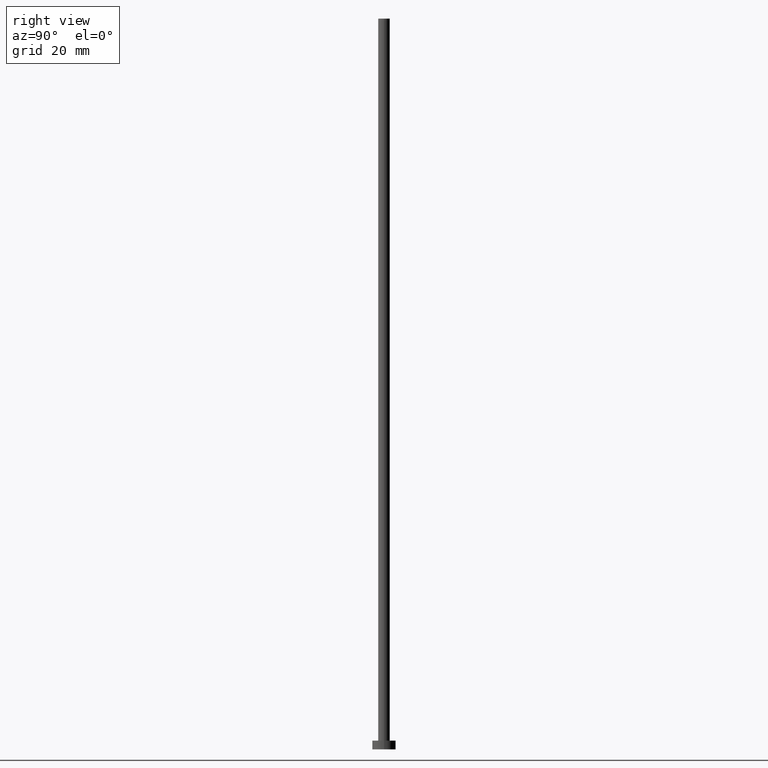
[diagram: clean part render]
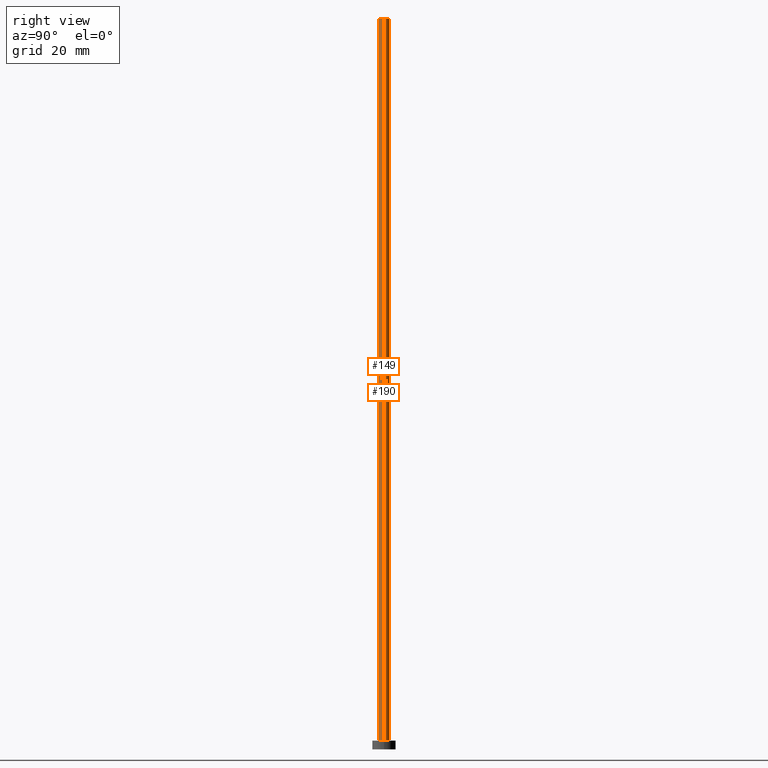
[diagram: same view with one multi-face feature highlighted, each face labeled with its STEP entity id]
A machine part, right view. The highlighted faces form ONE feature: a constant-radius fillet chain: 2 tangent blend faces with common blend radius 2 mm. The faces share edges in the B-rep.
Their STEP definitions:
[1] entity #190 (Cylinder):
#1 = DIRECTION ( 'NONE',  ( 0.000000000000000000, 0.000000000000000000, 1.000000000000000000 ) ) ;
#4 = CYLINDRICAL_SURFACE ( 'NONE', #167, 2.000000000000000000 ) ;
#6 = VECTOR ( 'NONE', #45, 1000.000000000000000 ) ;
#18 = CARTESIAN_POINT ( 'NONE',  ( 2.000000000000000000, 2.449293598294706414E-16, 250.0000000000000000 ) ) ;
#21 = VECTOR ( 'NONE', #84, 1000.000000000000000 ) ;
#22 = CARTESIAN_POINT ( 'NONE',  ( -2.000000000000000000, 0.000000000000000000, 250.0000000000000000 ) ) ;
#34 = AXIS2_PLACEMENT_3D ( 'NONE', #54, #1, #182 ) ;
#36 = DIRECTION ( 'NONE',  ( -0.000000000000000000, -0.000000000000000000, -1.000000000000000000 ) ) ;
#37 = DIRECTION ( 'NONE',  ( -1.000000000000000000, 0.000000000000000000, 0.000000000000000000 ) ) ;
#39 = ORIENTED_EDGE ( 'NONE', *, *, #106, .F. ) ;
#44 = ORIENTED_EDGE ( 'NONE', *, *, #225, .F. ) ;
#45 = DIRECTION ( 'NONE',  ( -0.000000000000000000, -0.000000000000000000, -1.000000000000000000 ) ) ;
#48 = CIRCLE ( 'NONE', #206, 2.000000000000000000 ) ;
#54 = CARTESIAN_POINT ( 'NONE',  ( 0.000000000000000000, 0.000000000000000000, 3.000000000000000000 ) ) ;
#73 = EDGE_CURVE ( 'NONE', #159, #227, #214, .T. ) ;
#84 = DIRECTION ( 'NONE',  ( -0.000000000000000000, -0.000000000000000000, -1.000000000000000000 ) ) ;
#106 = EDGE_CURVE ( 'NONE', #236, #234, #153, .T. ) ;
#111 = CARTESIAN_POINT ( 'NONE',  ( -2.000000000000000000, 0.000000000000000000, 250.0000000000000000 ) ) ;
#116 = FACE_OUTER_BOUND ( 'NONE', #185, .T. ) ;
#137 = ORIENTED_EDGE ( 'NONE', *, *, #73, .T. ) ;
#152 = CIRCLE ( 'NONE', #34, 2.000000000000000000 ) ;
#153 = LINE ( 'NONE', #111, #6 ) ;
#155 = CARTESIAN_POINT ( 'NONE',  ( 0.000000000000000000, 0.000000000000000000, 250.0000000000000000 ) ) ;
#158 = CARTESIAN_POINT ( 'NONE',  ( 2.000000000000000000, 2.449293598294706414E-16, 250.0000000000000000 ) ) ;
#159 = VERTEX_POINT ( 'NONE', #158 ) ;
#162 = CARTESIAN_POINT ( 'NONE',  ( 0.000000000000000000, 0.000000000000000000, 250.0000000000000000 ) ) ;
#167 = AXIS2_PLACEMENT_3D ( 'NONE', #162, #36, #37 ) ;
#177 = CARTESIAN_POINT ( 'NONE',  ( 2.000000000000000000, 2.449293598294706414E-16, 3.000000000000000000 ) ) ;
#182 = DIRECTION ( 'NONE',  ( 1.000000000000000000, 0.000000000000000000, 0.000000000000000000 ) ) ;
#183 = EDGE_CURVE ( 'NONE', #227, #234, #152, .T. ) ;
#184 = DIRECTION ( 'NONE',  ( 1.000000000000000000, 0.000000000000000000, 0.000000000000000000 ) ) ;
#185 = EDGE_LOOP ( 'NONE', ( #44, #137, #217, #39 ) ) ;
#190 = ADVANCED_FACE ( 'NONE', ( #116 ), #4, .T. ) ;
#201 = CARTESIAN_POINT ( 'NONE',  ( -2.000000000000000000, 0.000000000000000000, 3.000000000000000000 ) ) ;
#206 = AXIS2_PLACEMENT_3D ( 'NONE', #155, #240, #184 ) ;
#214 = LINE ( 'NONE', #18, #21 ) ;
#217 = ORIENTED_EDGE ( 'NONE', *, *, #183, .T. ) ;
#225 = EDGE_CURVE ( 'NONE', #159, #236, #48, .T. ) ;
#227 = VERTEX_POINT ( 'NONE', #177 ) ;
#234 = VERTEX_POINT ( 'NONE', #201 ) ;
#236 = VERTEX_POINT ( 'NONE', #22 ) ;
#240 = DIRECTION ( 'NONE',  ( 0.000000000000000000, 0.000000000000000000, 1.000000000000000000 ) ) ;
[2] entity #149 (Cylinder):
#6 = VECTOR ( 'NONE', #45, 1000.000000000000000 ) ;
#7 = CIRCLE ( 'NONE', #139, 2.000000000000000000 ) ;
#18 = CARTESIAN_POINT ( 'NONE',  ( 2.000000000000000000, 2.449293598294706414E-16, 250.0000000000000000 ) ) ;
#21 = VECTOR ( 'NONE', #84, 1000.000000000000000 ) ;
#22 = CARTESIAN_POINT ( 'NONE',  ( -2.000000000000000000, 0.000000000000000000, 250.0000000000000000 ) ) ;
#24 = CYLINDRICAL_SURFACE ( 'NONE', #76, 2.000000000000000000 ) ;
#32 = CARTESIAN_POINT ( 'NONE',  ( 0.000000000000000000, 0.000000000000000000, 250.0000000000000000 ) ) ;
#43 = EDGE_CURVE ( 'NONE', #236, #159, #64, .T. ) ;
#45 = DIRECTION ( 'NONE',  ( -0.000000000000000000, -0.000000000000000000, -1.000000000000000000 ) ) ;
#49 = DIRECTION ( 'NONE',  ( 0.000000000000000000, 0.000000000000000000, 1.000000000000000000 ) ) ;
#56 = DIRECTION ( 'NONE',  ( -1.000000000000000000, 0.000000000000000000, 0.000000000000000000 ) ) ;
#64 = CIRCLE ( 'NONE', #215, 2.000000000000000000 ) ;
#66 = DIRECTION ( 'NONE',  ( 1.000000000000000000, 0.000000000000000000, 0.000000000000000000 ) ) ;
#70 = CARTESIAN_POINT ( 'NONE',  ( 0.000000000000000000, 0.000000000000000000, 3.000000000000000000 ) ) ;
#72 = CARTESIAN_POINT ( 'NONE',  ( 0.000000000000000000, 0.000000000000000000, 250.0000000000000000 ) ) ;
#73 = EDGE_CURVE ( 'NONE', #159, #227, #214, .T. ) ;
#76 = AXIS2_PLACEMENT_3D ( 'NONE', #72, #238, #56 ) ;
#82 = EDGE_CURVE ( 'NONE', #234, #227, #7, .T. ) ;
#84 = DIRECTION ( 'NONE',  ( -0.000000000000000000, -0.000000000000000000, -1.000000000000000000 ) ) ;
#106 = EDGE_CURVE ( 'NONE', #236, #234, #153, .T. ) ;
#109 = DIRECTION ( 'NONE',  ( 1.000000000000000000, 0.000000000000000000, 0.000000000000000000 ) ) ;
#110 = ORIENTED_EDGE ( 'NONE', *, *, #43, .F. ) ;
#111 = CARTESIAN_POINT ( 'NONE',  ( -2.000000000000000000, 0.000000000000000000, 250.0000000000000000 ) ) ;
#117 = ORIENTED_EDGE ( 'NONE', *, *, #73, .F. ) ;
#128 = ORIENTED_EDGE ( 'NONE', *, *, #106, .T. ) ;
#139 = AXIS2_PLACEMENT_3D ( 'NONE', #70, #49, #66 ) ;
#149 = ADVANCED_FACE ( 'NONE', ( #178 ), #24, .T. ) ;
#153 = LINE ( 'NONE', #111, #6 ) ;
#156 = ORIENTED_EDGE ( 'NONE', *, *, #82, .T. ) ;
#158 = CARTESIAN_POINT ( 'NONE',  ( 2.000000000000000000, 2.449293598294706414E-16, 250.0000000000000000 ) ) ;
#159 = VERTEX_POINT ( 'NONE', #158 ) ;
#177 = CARTESIAN_POINT ( 'NONE',  ( 2.000000000000000000, 2.449293598294706414E-16, 3.000000000000000000 ) ) ;
#178 = FACE_OUTER_BOUND ( 'NONE', #200, .T. ) ;
#195 = DIRECTION ( 'NONE',  ( 0.000000000000000000, 0.000000000000000000, 1.000000000000000000 ) ) ;
#200 = EDGE_LOOP ( 'NONE', ( #117, #110, #128, #156 ) ) ;
#201 = CARTESIAN_POINT ( 'NONE',  ( -2.000000000000000000, 0.000000000000000000, 3.000000000000000000 ) ) ;
#214 = LINE ( 'NONE', #18, #21 ) ;
#215 = AXIS2_PLACEMENT_3D ( 'NONE', #32, #195, #109 ) ;
#227 = VERTEX_POINT ( 'NONE', #177 ) ;
#234 = VERTEX_POINT ( 'NONE', #201 ) ;
#236 = VERTEX_POINT ( 'NONE', #22 ) ;
#238 = DIRECTION ( 'NONE',  ( -0.000000000000000000, -0.000000000000000000, -1.000000000000000000 ) ) ;